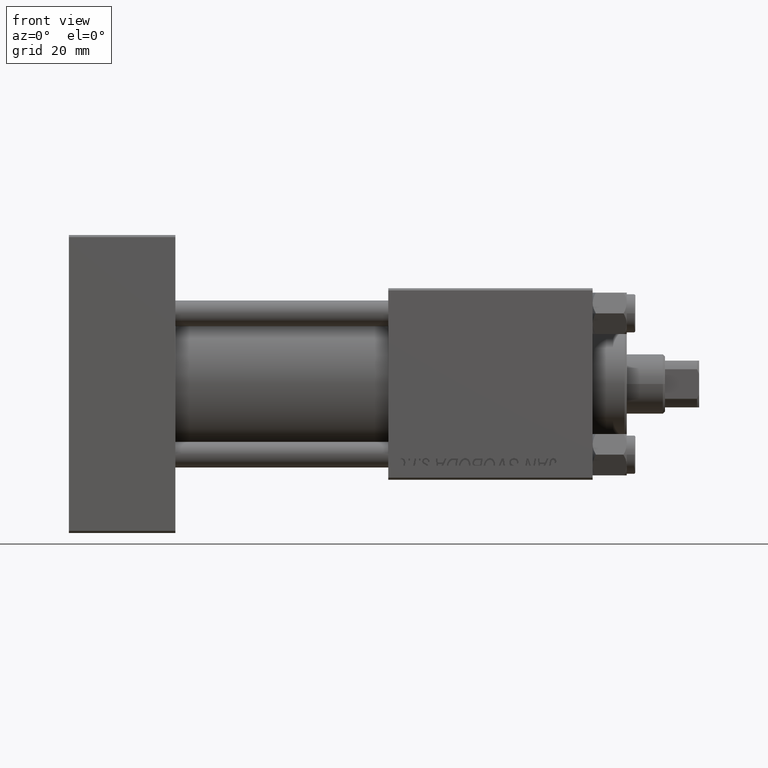
[diagram: clean part render]
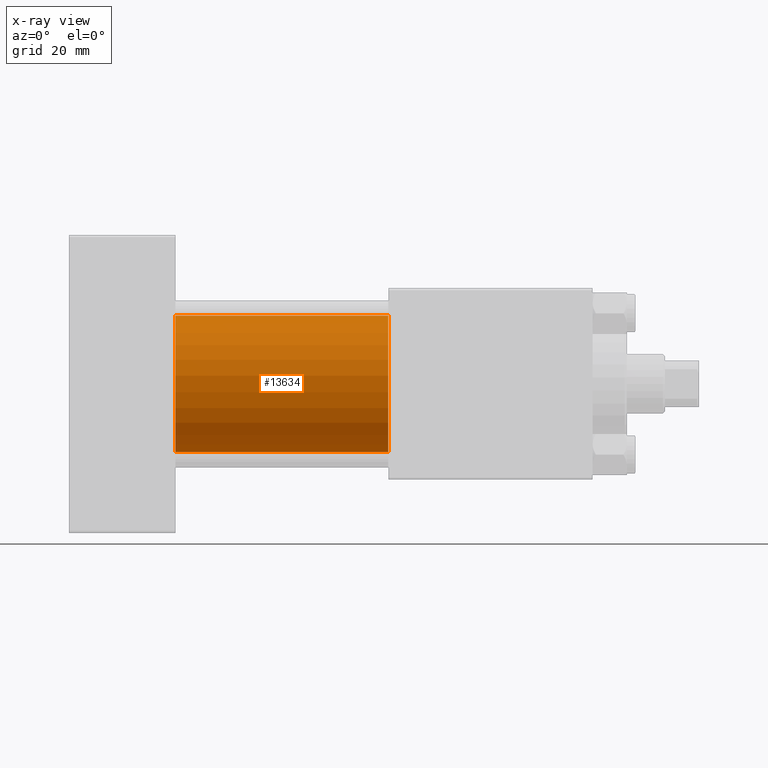
[diagram: x-ray — body ghosted, one internal face saturated and labeled with its STEP entity id]
A machine part, front view, then the same camera in x-ray: the body is ghosted and one INTERNAL B-rep face — a face not visible from any outside direction — is saturated and labeled: STEP entity #13634.
In plain terms, the highlighted cylindrical surface (partial cylindrical patch) has radius 16 mm, axis along (-1, -0, -0).
Its self-contained STEP definition (entity closure, byte-faithful):
#671 = EDGE_CURVE ( 'NONE', #26559, #30097, #35153, .T. ) ;
#2229 = CARTESIAN_POINT ( 'NONE',  ( 75.00000000000001421, -2.602085213965210642E-15, 16.00000000000000000 ) ) ;
#3134 = VECTOR ( 'NONE', #13731, 1000.000000000000000 ) ;
#5254 = ORIENTED_EDGE ( 'NONE', *, *, #37624, .T. ) ;
#5822 = DIRECTION ( 'NONE',  ( 1.000000000000000000, 0.000000000000000000, 0.000000000000000000 ) ) ;
#9494 = EDGE_CURVE ( 'NONE', #30097, #38001, #10279, .T. ) ;
#10049 = CARTESIAN_POINT ( 'NONE',  ( 75.00000000000001421, -6.426503353294456087E-16, -16.00000000000000000 ) ) ;
#10279 = CIRCLE ( 'NONE', #11950, 16.00000000000000000 ) ;
#11950 = AXIS2_PLACEMENT_3D ( 'NONE', #41843, #5822, #47095 ) ;
#13634 = ADVANCED_FACE ( 'NONE', ( #33736 ), #30053, .F. ) ;
#13731 = DIRECTION ( 'NONE',  ( -1.000000000000000000, -0.000000000000000000, -0.000000000000000000 ) ) ;
#13754 = AXIS2_PLACEMENT_3D ( 'NONE', #42937, #14796, #30583 ) ;
#14018 = CARTESIAN_POINT ( 'NONE',  ( 25.00000000000000000, -6.426503353294456087E-16, -16.00000000000000000 ) ) ;
#14796 = DIRECTION ( 'NONE',  ( -1.000000000000000000, -0.000000000000000000, -0.000000000000000000 ) ) ;
#19444 = CARTESIAN_POINT ( 'NONE',  ( 75.00000000000001421, -2.602085213965210642E-15, 0.000000000000000000 ) ) ;
#21973 = ORIENTED_EDGE ( 'NONE', *, *, #671, .F. ) ;
#23690 = CARTESIAN_POINT ( 'NONE',  ( 75.00000000000001421, -6.426503353294456087E-16, -16.00000000000000000 ) ) ;
#24051 = EDGE_CURVE ( 'NONE', #24177, #38001, #26349, .T. ) ;
#24177 = VERTEX_POINT ( 'NONE', #23690 ) ;
#26349 = LINE ( 'NONE', #10049, #3134 ) ;
#26559 = VERTEX_POINT ( 'NONE', #2229 ) ;
#27841 = DIRECTION ( 'NONE',  ( 0.000000000000000000, 0.000000000000000000, -1.000000000000000000 ) ) ;
#29251 = VECTOR ( 'NONE', #42800, 1000.000000000000000 ) ;
#30053 = CYLINDRICAL_SURFACE ( 'NONE', #13754, 16.00000000000000000 ) ;
#30097 = VERTEX_POINT ( 'NONE', #36015 ) ;
#30583 = DIRECTION ( 'NONE',  ( 0.000000000000000000, 0.000000000000000000, 1.000000000000000000 ) ) ;
#30700 = CARTESIAN_POINT ( 'NONE',  ( 75.00000000000001421, -2.602085213965210642E-15, 16.00000000000000000 ) ) ;
#33018 = ORIENTED_EDGE ( 'NONE', *, *, #9494, .F. ) ;
#33736 = FACE_OUTER_BOUND ( 'NONE', #35967, .T. ) ;
#35153 = LINE ( 'NONE', #30700, #29251 ) ;
#35967 = EDGE_LOOP ( 'NONE', ( #5254, #42426, #33018, #21973 ) ) ;
#36015 = CARTESIAN_POINT ( 'NONE',  ( 25.00000000000000000, -2.602085213965210642E-15, 16.00000000000000000 ) ) ;
#37624 = EDGE_CURVE ( 'NONE', #26559, #24177, #46773, .T. ) ;
#38001 = VERTEX_POINT ( 'NONE', #14018 ) ;
#39938 = DIRECTION ( 'NONE',  ( 1.000000000000000000, 0.000000000000000000, 0.000000000000000000 ) ) ;
#41732 = AXIS2_PLACEMENT_3D ( 'NONE', #19444, #39938, #27841 ) ;
#41843 = CARTESIAN_POINT ( 'NONE',  ( 25.00000000000000000, -2.602085213965210642E-15, 0.000000000000000000 ) ) ;
#42426 = ORIENTED_EDGE ( 'NONE', *, *, #24051, .T. ) ;
#42800 = DIRECTION ( 'NONE',  ( -1.000000000000000000, -0.000000000000000000, -0.000000000000000000 ) ) ;
#42937 = CARTESIAN_POINT ( 'NONE',  ( 75.00000000000001421, -2.602085213965210642E-15, 0.000000000000000000 ) ) ;
#46773 = CIRCLE ( 'NONE', #41732, 16.00000000000000000 ) ;
#47095 = DIRECTION ( 'NONE',  ( 0.000000000000000000, 0.000000000000000000, -1.000000000000000000 ) ) ;